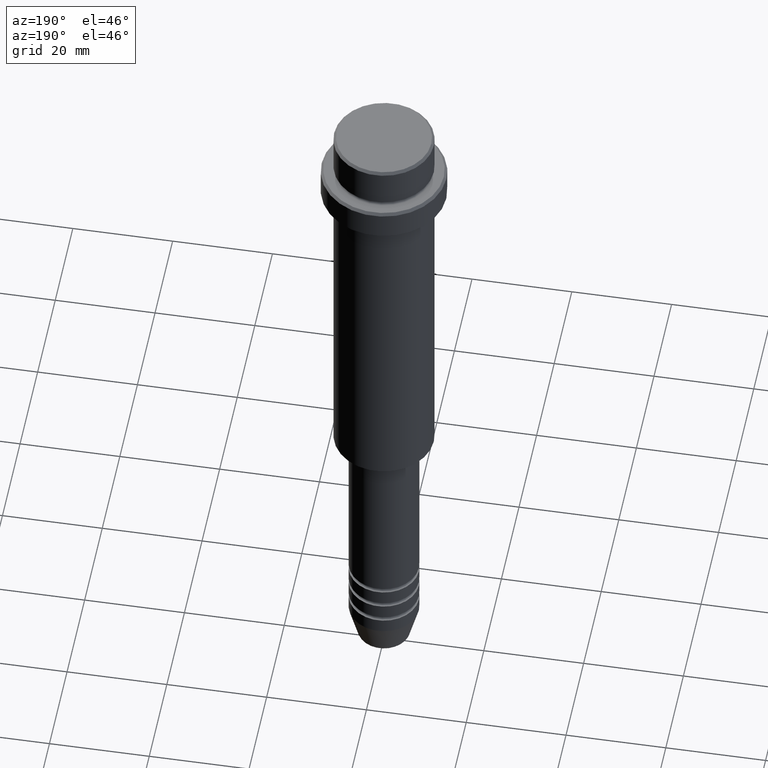
[diagram: clean part render]
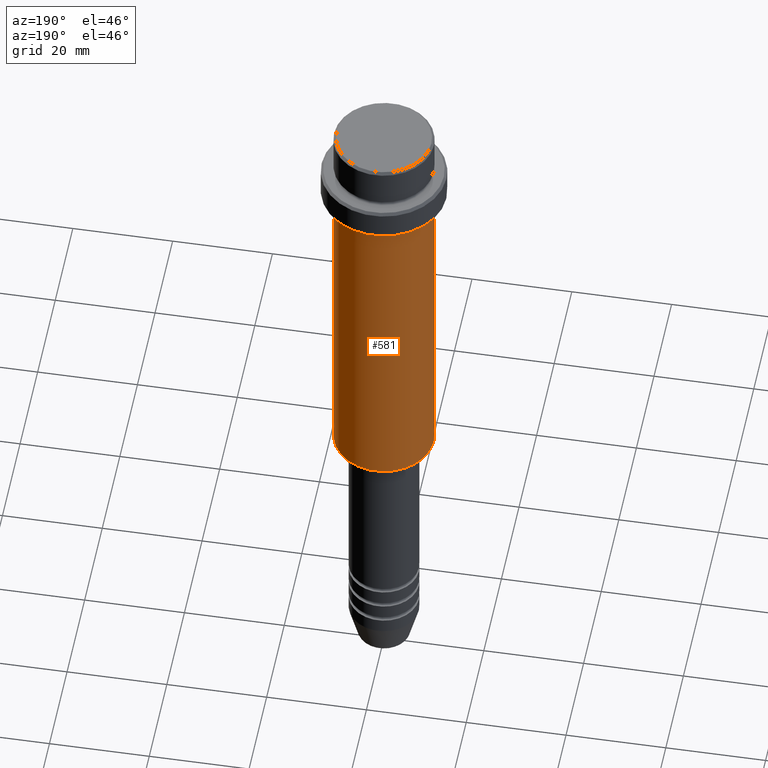
[diagram: same view with one face highlighted and labeled with its STEP entity id]
A machine part, auxiliary view. The second image highlights one B-rep face of the part: STEP entity #581.
In plain terms, the highlighted cylindrical surface (partial cylindrical patch) has radius 10 mm, axis along (-0, -0, 1).
Its self-contained STEP definition (entity closure, byte-faithful):
#27 = DIRECTION ( 'NONE',  ( -0.000000000000000000, -0.000000000000000000, 1.000000000000000000 ) ) ;
#32 = LINE ( 'NONE', #564, #735 ) ;
#43 = ORIENTED_EDGE ( 'NONE', *, *, #542, .F. ) ;
#49 = VERTEX_POINT ( 'NONE', #1315 ) ;
#67 = ORIENTED_EDGE ( 'NONE', *, *, #417, .F. ) ;
#87 = VERTEX_POINT ( 'NONE', #985 ) ;
#110 = AXIS2_PLACEMENT_3D ( 'NONE', #493, #591, #1373 ) ;
#165 = FACE_OUTER_BOUND ( 'NONE', #1229, .T. ) ;
#348 = LINE ( 'NONE', #482, #396 ) ;
#371 = DIRECTION ( 'NONE',  ( -0.000000000000000000, -0.000000000000000000, 1.000000000000000000 ) ) ;
#396 = VECTOR ( 'NONE', #371, 1000.000000000000000 ) ;
#417 = EDGE_CURVE ( 'NONE', #484, #49, #1109, .T. ) ;
#454 = ORIENTED_EDGE ( 'NONE', *, *, #847, .T. ) ;
#459 = DIRECTION ( 'NONE',  ( -1.000000000000000000, 0.000000000000000000, 0.000000000000000000 ) ) ;
#464 = DIRECTION ( 'NONE',  ( -0.000000000000000000, -0.000000000000000000, 1.000000000000000000 ) ) ;
#482 = CARTESIAN_POINT ( 'NONE',  ( 9.999999999999998224, 0.000000000000000000, 0.000000000000000000 ) ) ;
#484 = VERTEX_POINT ( 'NONE', #1230 ) ;
#493 = CARTESIAN_POINT ( 'NONE',  ( 0.000000000000000000, 0.000000000000000000, 0.000000000000000000 ) ) ;
#542 = EDGE_CURVE ( 'NONE', #837, #484, #348, .T. ) ;
#564 = CARTESIAN_POINT ( 'NONE',  ( -9.999999999999998224, 1.224646799147353059E-15, 0.000000000000000000 ) ) ;
#581 = ADVANCED_FACE ( 'NONE', ( #165 ), #1049, .T. ) ;
#591 = DIRECTION ( 'NONE',  ( -0.000000000000000000, -0.000000000000000000, 1.000000000000000000 ) ) ;
#678 = CARTESIAN_POINT ( 'NONE',  ( 0.000000000000000000, 0.000000000000000000, -16.00000000000000000 ) ) ;
#735 = VECTOR ( 'NONE', #464, 1000.000000000000000 ) ;
#789 = CARTESIAN_POINT ( 'NONE',  ( 0.000000000000000000, 0.000000000000000000, -84.50000000000001421 ) ) ;
#802 = ORIENTED_EDGE ( 'NONE', *, *, #890, .T. ) ;
#837 = VERTEX_POINT ( 'NONE', #1027 ) ;
#847 = EDGE_CURVE ( 'NONE', #87, #49, #32, .T. ) ;
#890 = EDGE_CURVE ( 'NONE', #837, #87, #1388, .T. ) ;
#985 = CARTESIAN_POINT ( 'NONE',  ( -9.999999999999998224, 1.224646799147353059E-15, -84.50000000000001421 ) ) ;
#999 = DIRECTION ( 'NONE',  ( -0.000000000000000000, -0.000000000000000000, 1.000000000000000000 ) ) ;
#1027 = CARTESIAN_POINT ( 'NONE',  ( 9.999999999999998224, 0.000000000000000000, -84.50000000000001421 ) ) ;
#1049 = CYLINDRICAL_SURFACE ( 'NONE', #110, 9.999999999999998224 ) ;
#1109 = CIRCLE ( 'NONE', #1156, 9.999999999999998224 ) ;
#1122 = DIRECTION ( 'NONE',  ( 1.000000000000000000, 0.000000000000000000, 0.000000000000000000 ) ) ;
#1156 = AXIS2_PLACEMENT_3D ( 'NONE', #678, #999, #1122 ) ;
#1229 = EDGE_LOOP ( 'NONE', ( #802, #454, #67, #43 ) ) ;
#1230 = CARTESIAN_POINT ( 'NONE',  ( 9.999999999999998224, 0.000000000000000000, -16.00000000000000000 ) ) ;
#1315 = CARTESIAN_POINT ( 'NONE',  ( -9.999999999999998224, 1.224646799147353059E-15, -16.00000000000000000 ) ) ;
#1373 = DIRECTION ( 'NONE',  ( 1.000000000000000000, 0.000000000000000000, 0.000000000000000000 ) ) ;
#1388 = CIRCLE ( 'NONE', #1412, 9.999999999999998224 ) ;
#1412 = AXIS2_PLACEMENT_3D ( 'NONE', #789, #27, #459 ) ;